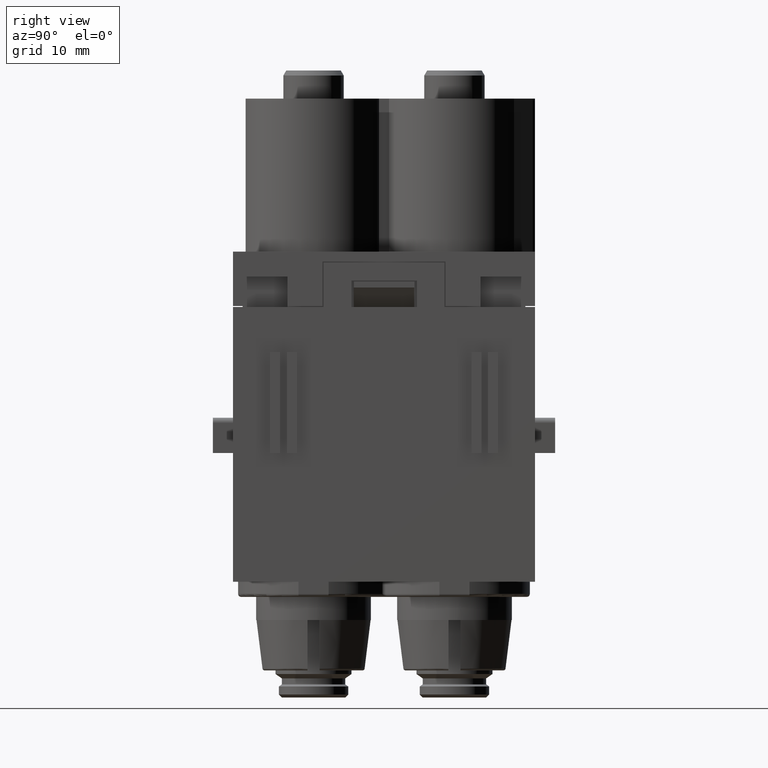
[diagram: clean part render]
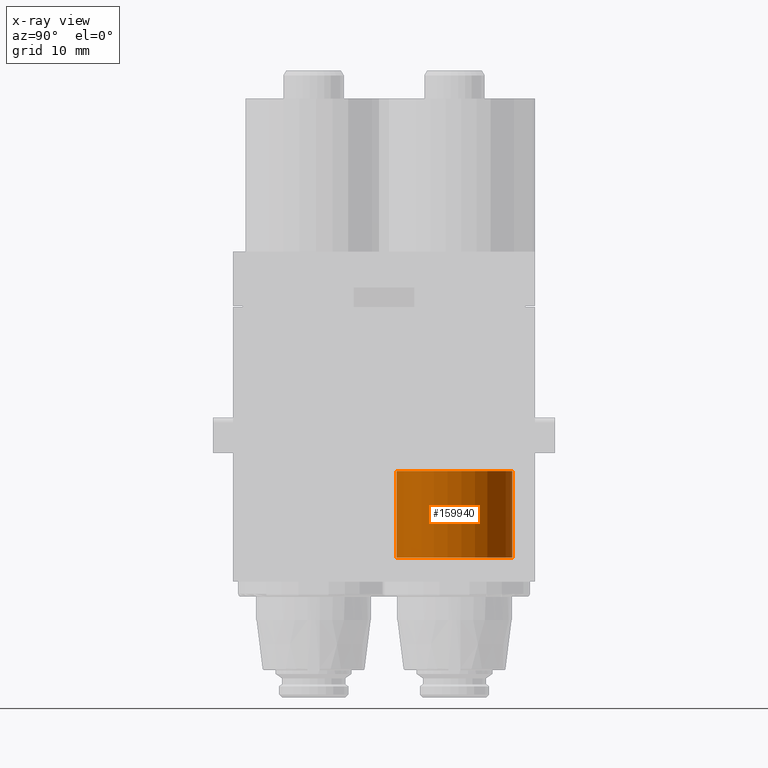
[diagram: x-ray — body ghosted, one internal face saturated and labeled with its STEP entity id]
A machine part, right view, then the same camera in x-ray: the body is ghosted and one INTERNAL B-rep face — a face not visible from any outside direction — is saturated and labeled: STEP entity #159940.
In plain terms, the highlighted cylindrical surface (partial cylindrical patch) has radius 5.75 mm, axis along (0, -0, -1).
Its self-contained STEP definition (entity closure, byte-faithful):
#117770=CARTESIAN_POINT('',(66.6468229999995,73.9545149999995,-36.6));
#117780=DIRECTION('',(2.58844984525645E-31,-9.86076131526265E-32,-1.));
#117790=DIRECTION('',(2.42232056741089E-44,1.,-9.86076131526265E-32));
#117800=AXIS2_PLACEMENT_3D('',#117770,#117780,#117790);
#117810=CIRCLE('',#117800,5.75000000000001);
#117820=CARTESIAN_POINT('',(66.6468229999995,68.2045149999995,-36.6));
#117830=VERTEX_POINT('',#117820);
#117840=CARTESIAN_POINT('',(66.6468229999995,79.7045149999995,-36.6));
#117850=VERTEX_POINT('',#117840);
#117880=EDGE_CURVE('',#117850,#117830,#117810,.T.);
#159630=CARTESIAN_POINT('',(66.6468229999995,73.9545149999995,
-37.0999999999992));
#159640=DIRECTION('',(2.58844984525645E-31,-9.86076131526265E-32,-1.));
#159650=DIRECTION('',(2.42232056741089E-44,1.,-2.95822839457879E-31));
#159660=AXIS2_PLACEMENT_3D('',#159630,#159640,#159650);
#159670=CYLINDRICAL_SURFACE('',#159660,5.75000000000001);
#159680=CARTESIAN_POINT('',(66.6468229999995,79.7045149999995,
-37.0999999999992));
#159690=DIRECTION('',(2.58844984525645E-31,-9.86076131526265E-32,-1.));
#159700=VECTOR('',#159690,1.);
#159710=LINE('',#159680,#159700);
#159720=CARTESIAN_POINT('',(66.6468229999995,79.7045149999995,
-45.2082598209799));
#159730=VERTEX_POINT('',#159720);
#159740=EDGE_CURVE('',#117850,#159730,#159710,.T.);
#159750=ORIENTED_EDGE('',*,*,#159740,.F.);
#159760=CARTESIAN_POINT('',(66.6468229999995,73.9545149999995,
-45.2082598209802));
#159770=DIRECTION('',(1.41748443906901E-31,9.86076131526265E-32,-1.));
#159780=DIRECTION('',(-2.77555756156289E-17,1.,9.86076131526265E-32));
#159790=AXIS2_PLACEMENT_3D('',#159760,#159770,#159780);
#159800=CIRCLE('',#159790,5.75000000000001);
#159810=CARTESIAN_POINT('',(66.6468229999995,68.2045149999995,
-45.2082598209802));
#159820=VERTEX_POINT('',#159810);
#159830=EDGE_CURVE('',#159730,#159820,#159800,.T.);
#159840=ORIENTED_EDGE('',*,*,#159830,.F.);
#159850=CARTESIAN_POINT('',(66.6468229999995,68.2045149999995,
-37.0999999999992));
#159860=DIRECTION('',(2.58844984525645E-31,-9.86076131526265E-32,-1.));
#159870=VECTOR('',#159860,1.);
#159880=LINE('',#159850,#159870);
#159890=EDGE_CURVE('',#117830,#159820,#159880,.T.);
#159900=ORIENTED_EDGE('',*,*,#159890,.T.);
#159910=ORIENTED_EDGE('',*,*,#117880,.T.);
#159920=EDGE_LOOP('',(#159910,#159900,#159840,#159750));
#159930=FACE_OUTER_BOUND('',#159920,.T.);
#159940=ADVANCED_FACE('',(#159930),#159670,.T.);